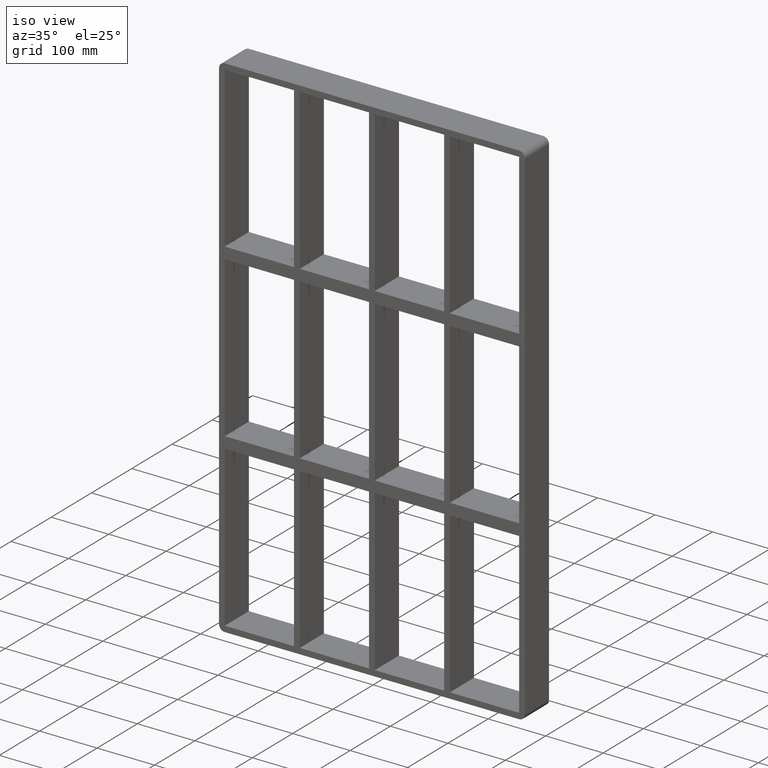
[diagram: clean part render]
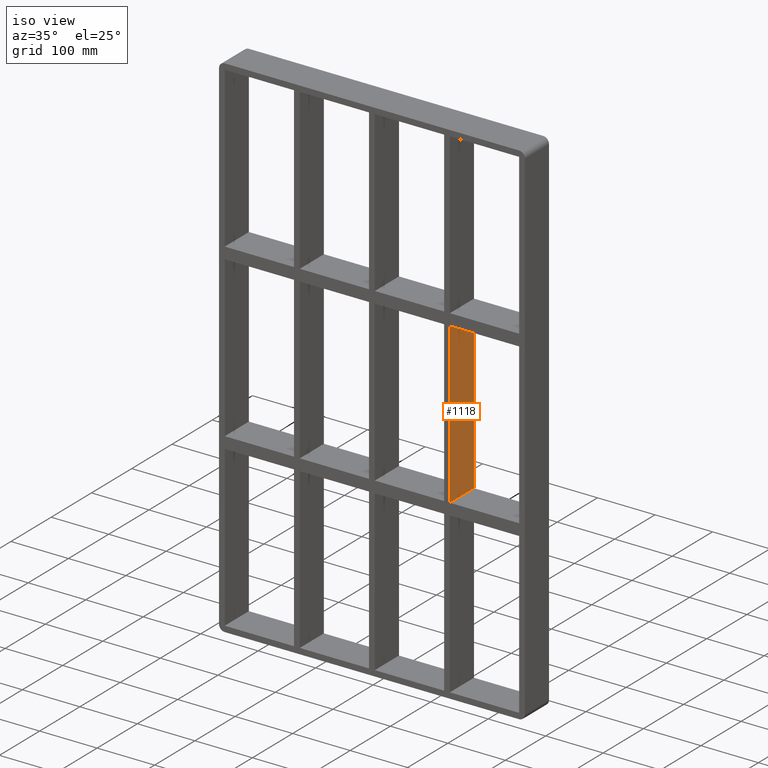
[diagram: same view with one face highlighted and labeled with its STEP entity id]
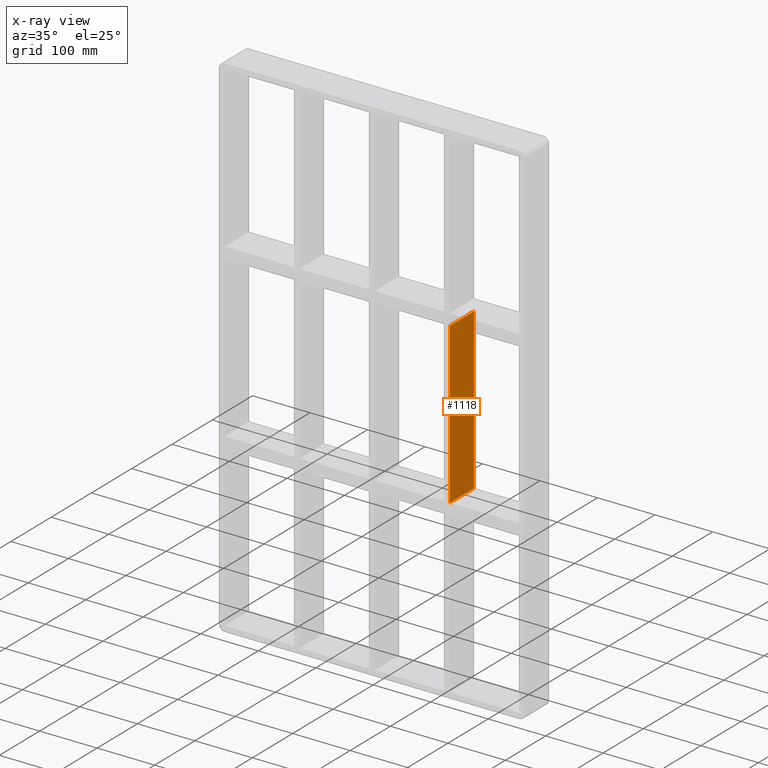
[diagram: x-ray of the same camera — body ghosted, the highlighted face saturated]
A machine part, iso view. The second image highlights one B-rep face of the part: STEP entity #1118.
The next image is the same camera in x-ray: the body ghosted, the highlighted face saturated — about 0% of this face is hidden behind the body in this view.
In plain terms, the highlighted planar face has unit normal (1, 0, 0).
Its self-contained STEP definition (entity closure, byte-faithful):
#153=CARTESIAN_POINT('',(135.50000000000728,57.0,138.99999999999065));
#154=VERTEX_POINT('',#153);
#155=CARTESIAN_POINT('',(135.50000000000728,-3.0,138.99999999999065));
#156=VERTEX_POINT('',#155);
#157=CARTESIAN_POINT('',(135.50000000000728,57.0,138.99999999999065));
#158=DIRECTION('',(0.0,-1.0,0.0));
#159=VECTOR('',#158,60.0);
#160=LINE('',#157,#159);
#161=EDGE_CURVE('',#154,#156,#160,.T.);
#825=CARTESIAN_POINT('',(135.50000000000728,57.0,-139.00000000000006));
#826=VERTEX_POINT('',#825);
#827=CARTESIAN_POINT('',(135.50000000000728,57.0,138.99999999999068));
#828=DIRECTION('',(0.0,0.0,-1.0));
#829=VECTOR('',#828,277.99999999999079);
#830=LINE('',#827,#829);
#831=EDGE_CURVE('',#154,#826,#830,.T.);
#1095=CARTESIAN_POINT('',(135.50000000000728,-3.0,437.0));
#1096=DIRECTION('',(1.0,0.0,0.0));
#1097=DIRECTION('',(0.0,0.0,-1.0));
#1098=AXIS2_PLACEMENT_3D('',#1095,#1096,#1097);
#1099=PLANE('',#1098);
#1100=ORIENTED_EDGE('',*,*,#161,.T.);
#1101=CARTESIAN_POINT('',(135.50000000000728,-3.0,-139.00000000000006));
#1102=VERTEX_POINT('',#1101);
#1103=CARTESIAN_POINT('',(135.50000000000728,-3.0,138.99999999999068));
#1104=DIRECTION('',(0.0,0.0,-1.0));
#1105=VECTOR('',#1104,277.99999999999079);
#1106=LINE('',#1103,#1105);
#1107=EDGE_CURVE('',#156,#1102,#1106,.T.);
#1108=ORIENTED_EDGE('',*,*,#1107,.T.);
#1109=CARTESIAN_POINT('',(135.5000000000073,57.0,-139.00000000000006));
#1110=DIRECTION('',(0.0,-1.0,0.0));
#1111=VECTOR('',#1110,60.0);
#1112=LINE('',#1109,#1111);
#1113=EDGE_CURVE('',#826,#1102,#1112,.T.);
#1114=ORIENTED_EDGE('',*,*,#1113,.F.);
#1115=ORIENTED_EDGE('',*,*,#831,.F.);
#1116=EDGE_LOOP('',(#1100,#1108,#1114,#1115));
#1117=FACE_OUTER_BOUND('',#1116,.T.);
#1118=ADVANCED_FACE('',(#1117),#1099,.T.);